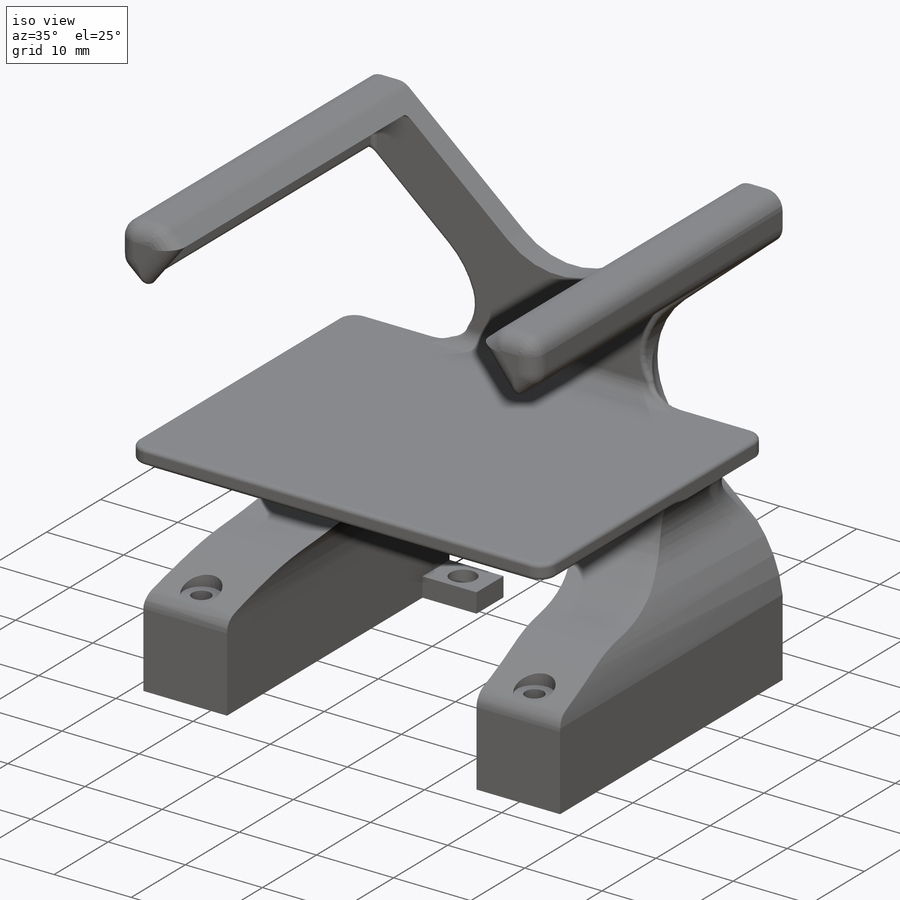
[diagram: iso view]
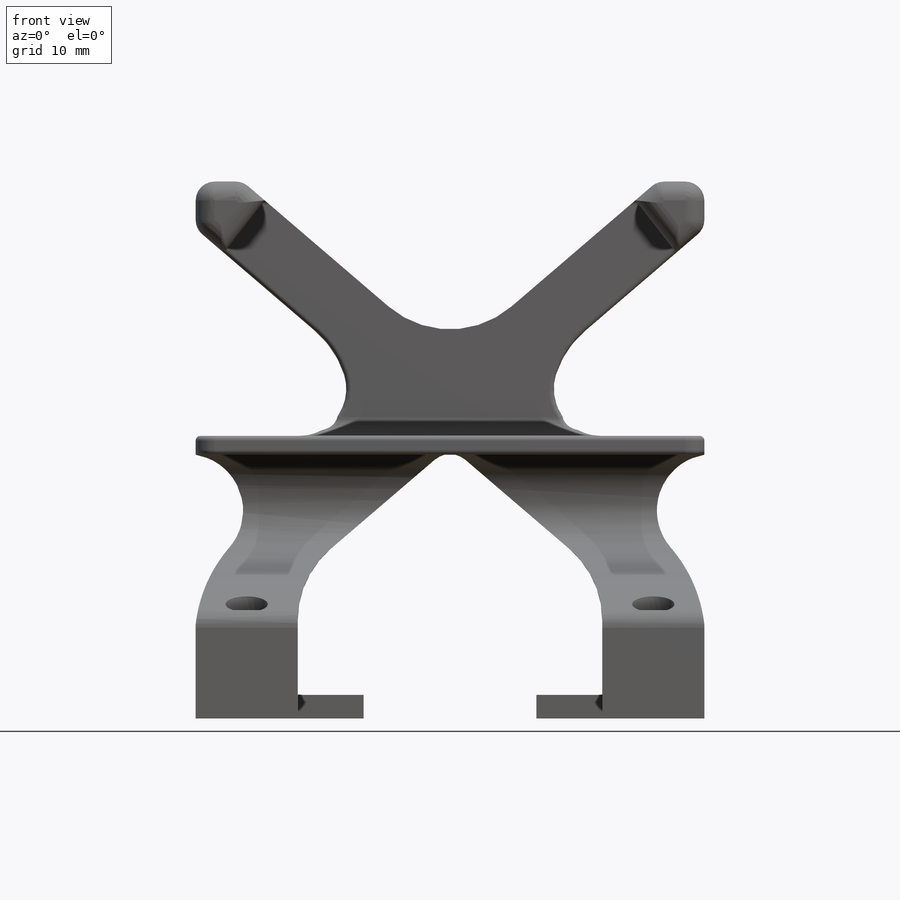
[diagram: front view]
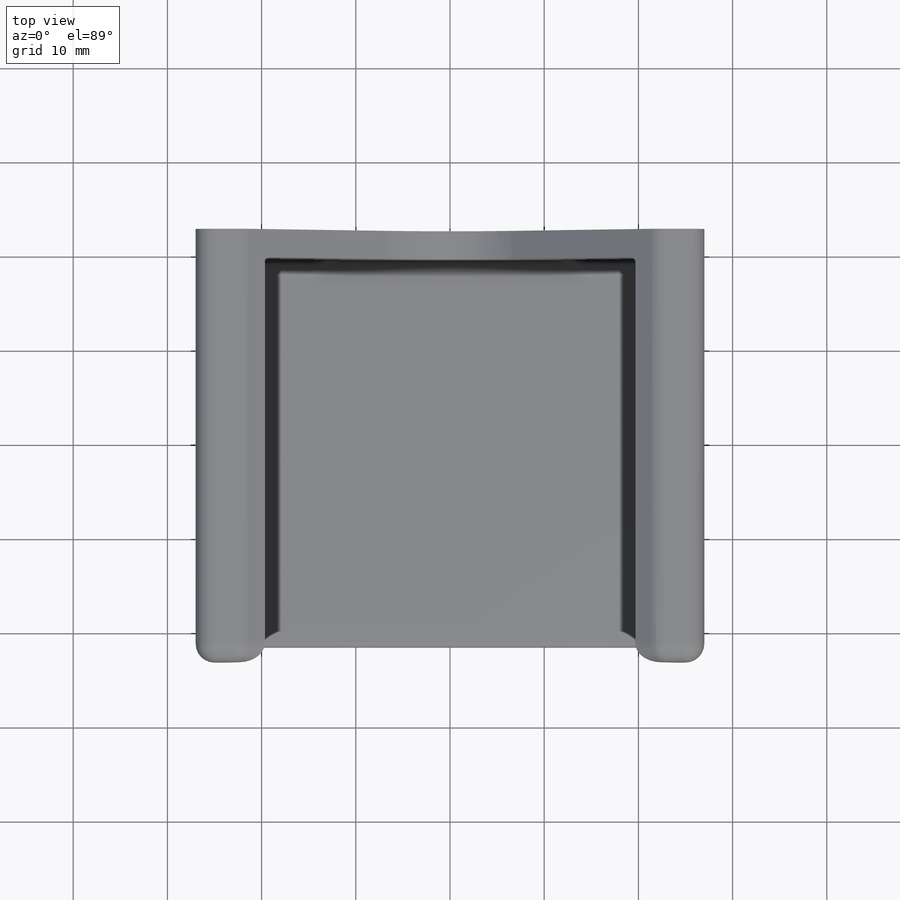
[diagram: top view]
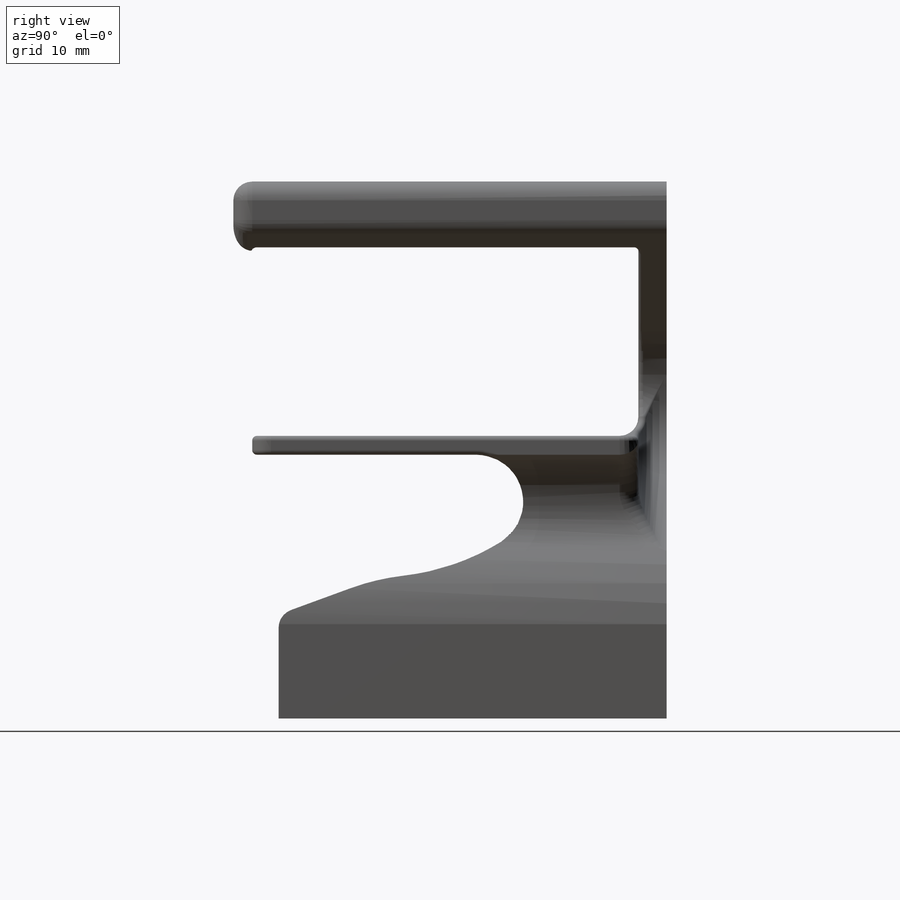
[diagram: right view]
SOLIDWORKS PART (.sldprt)
format: sldprt  version: not decoded by parser v0  size: 1,047,552 bytes
history: native  units: mm
features: fillet x22, sketch x16, cut_extrude x9, extrude x7, material x1, chamfer x1, plane x1 (+13 scaffold rows collapsed)
feature tree (70):
  scaffold x13  (default folders/planes/origin — collapsed)
  material  "Material <not specified>"
  sketch  "Sketch1"  dims[D1=54.0mm D2=44.0mm]
  extrude  "Boss-Extrude2"  Depth=47mm
  sketch  "Sketch3"  dims[D1=48.0mm D2=25.0mm D3=3.0mm D4=2.0mm]
  cut_extrude  "Cut-Extrude1"  Depth=41mm
  sketch  "Sketch4"  dims[D1=5.0mm D2=5.0mm 5=5.0mm D3=5.0mm D4=5.0mm D5=5.0mm D6=5.0mm D7=5.0mm]
  cut_extrude  "Cut-Extrude2"  Depth=100mm
  sketch  "Sketch5"  dims[D1=0.0mm D2=0.0mm D3=0.0mm D4=0.0mm]
  extrude  "Boss-Extrude3"  Depth=2mm
  sketch  "Sketch6"
  extrude  "Boss-Extrude4"  Depth=2mm
  sketch  "Sketch7"
  cut_extrude  "Cut-Extrude3"  Depth=100mm
  fillet  "Fillet1"  Radius=5mm
  fillet  "Fillet2"  Radius=25mm
  fillet  "Fillet3"  Radius=6mm
  sketch  "Sketch9"
  extrude  "Boss-Extrude5"  [1 undecoded]
  chamfer  "Chamfer1"  Distance=5mm Angle=70deg
  fillet  "Fillet5"  Radius=5mm
  fillet  "Fillet6"  Radius=10mm
  fillet  "Fillet7"  Radius=2mm
  fillet  "Fillet8"  Radius=3mm
  fillet  "Fillet9"  Radius=2mm
  fillet  "Fillet10"  Radius=2mm
  fillet  "Fillet11"  Radius=2mm
  fillet  "Fillet12"  Radius=2mm
  fillet  "Fillet13"  Radius=2.5mm
  fillet  "Fillet14"  Radius=25mm
  fillet  "Fillet15"  Radius=1.5mm
  fillet  "Fillet16"  Radius=0.5mm
  fillet  "Fillet17"  Radius=0.5mm
  sketch  "Sketch10"  dims[c1.D1=~1.680834mm c1.D2=~0.970356mm c2.D1=3.0mm]
  cut_extrude  "Cut-Extrude4"  Depth=5mm
  sketch  "Sketch11"  dims[D1=4.5mm D2=4.5mm]
  cut_extrude  "Cut-Extrude6"  Depth=16.5mm
  fillet  "Fillet18"  Radius=5mm
  fillet  "Fillet22"  Radius=10mm
  fillet  "Fillet24"  Radius=15mm
  fillet  "Fillet25"  Radius=0.5mm
  fillet  "Fillet26"  Radius=0.5mm
  sketch  "Sketch12"
  extrude  "Boss-Extrude6"  Depth=10mm
  sketch  "Sketch13"
  cut_extrude  "Cut-Extrude7"  Depth=100mm
  fillet  "Fillet28"  Radius=2mm
  plane  "Plane1"
  sketch  "Sketch15"  dims[D1=2.5mm D2=2.5mm]
  extrude  "Boss-Extrude8"  Depth=5mm
  sketch  "Sketch16"  dims[D1=~0.946558mm]
  cut_extrude  "Cut-Extrude8"  Depth=5mm
  sketch  "Sketch17"  dims[D1=7.0mm D2=7.0mm]
  extrude  "Boss-Extrude9"  Depth=5mm
  sketch  "Sketch18"  dims[D1=~1.617118mm]
  cut_extrude  "Cut-Extrude9"  Depth=5mm
  sketch  "Sketch19"
  cut_extrude  "Cut-Extrude10"  Depth=5mm
decode coverage: 48 of 55 modeling features carry decoded parameters
note: ~ marks probable driven/reference dimensions
note: 1 parameter value undecoded
note: suppression state not decoded; provenance and decode notes live in map.json
